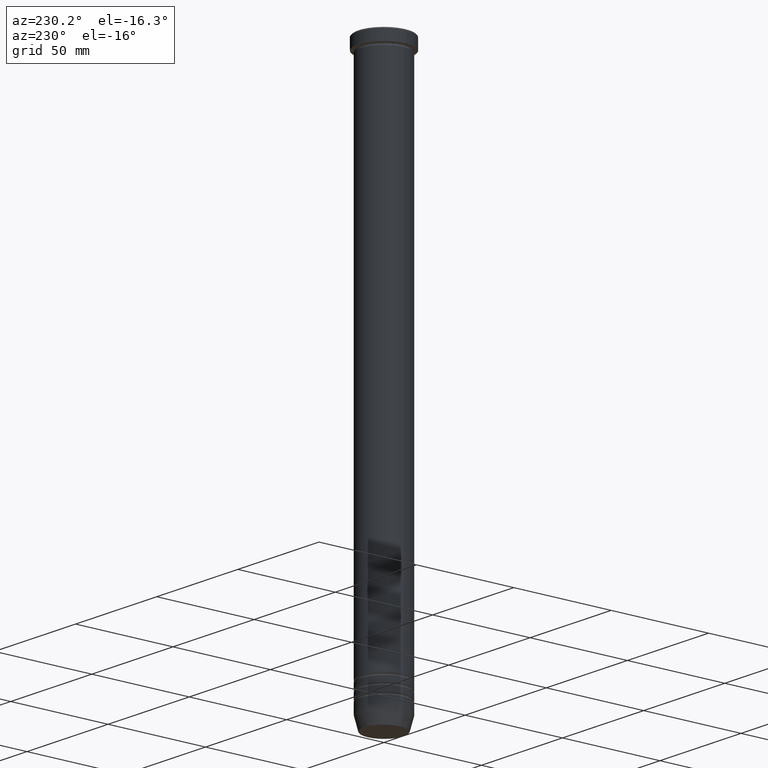
[diagram: clean part render]
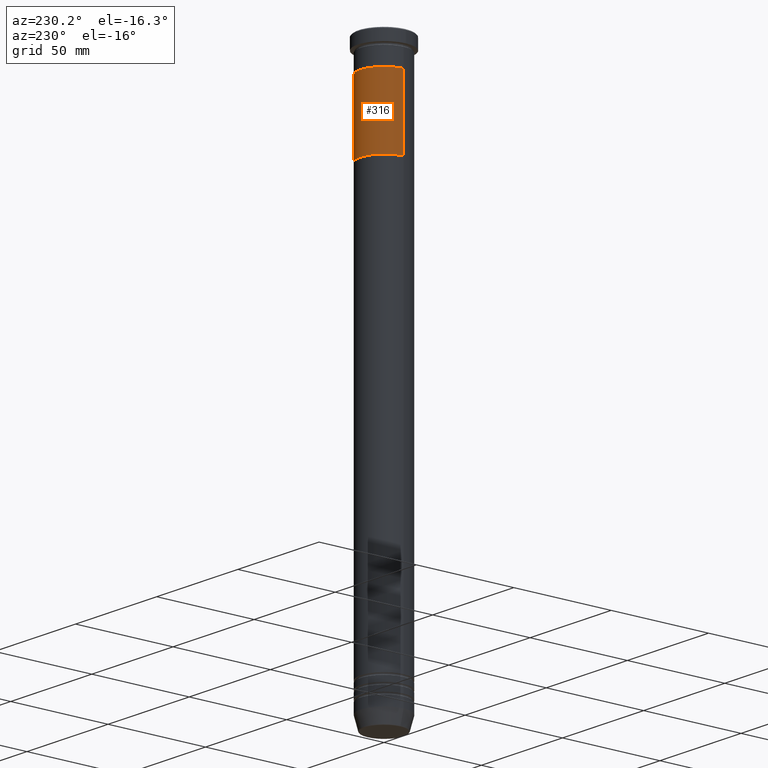
[diagram: same view with one face highlighted and labeled with its STEP entity id]
A machine part, auxiliary view. The second image highlights one B-rep face of the part: STEP entity #316.
In plain terms, the highlighted cylindrical surface (edge-blend (fillet) strip) has radius 12 mm, axis along (-0, -0, 1).
Its self-contained STEP definition (entity closure, byte-faithful):
#36 = CYLINDRICAL_SURFACE ( 'NONE', #808, 12.00000000000000178 ) ;
#126 = DIRECTION ( 'NONE',  ( -0.000000000000000000, -0.000000000000000000, 1.000000000000000000 ) ) ;
#133 = CIRCLE ( 'NONE', #927, 12.00000000000000178 ) ;
#153 = CIRCLE ( 'NONE', #308, 12.00000000000000178 ) ;
#156 = VECTOR ( 'NONE', #126, 1000.000000000000000 ) ;
#208 = DIRECTION ( 'NONE',  ( 0.000000000000000000, 0.000000000000000000, -1.000000000000000000 ) ) ;
#278 = VERTEX_POINT ( 'NONE', #389 ) ;
#298 = DIRECTION ( 'NONE',  ( -1.000000000000000000, 0.000000000000000000, 0.000000000000000000 ) ) ;
#308 = AXIS2_PLACEMENT_3D ( 'NONE', #649, #208, #298 ) ;
#316 = ADVANCED_FACE ( 'NONE', ( #933 ), #36, .T. ) ;
#320 = CARTESIAN_POINT ( 'NONE',  ( -12.00000000000000178, 1.469576158976824144E-15, -16.00000000000000000 ) ) ;
#386 = CARTESIAN_POINT ( 'NONE',  ( 0.000000000000000000, 0.000000000000000000, -16.00000000000000000 ) ) ;
#389 = CARTESIAN_POINT ( 'NONE',  ( -12.00000000000000178, 1.469576158976824144E-15, -52.00000000000000000 ) ) ;
#394 = CARTESIAN_POINT ( 'NONE',  ( 0.000000000000000000, 0.000000000000000000, -52.00000000000000000 ) ) ;
#398 = CARTESIAN_POINT ( 'NONE',  ( -12.00000000000000178, 1.469576158976824144E-15, -52.00000000000000000 ) ) ;
#399 = DIRECTION ( 'NONE',  ( -0.000000000000000000, -0.000000000000000000, 1.000000000000000000 ) ) ;
#508 = LINE ( 'NONE', #1112, #156 ) ;
#551 = EDGE_LOOP ( 'NONE', ( #901, #1088, #949, #979 ) ) ;
#578 = DIRECTION ( 'NONE',  ( 1.000000000000000000, 0.000000000000000000, 0.000000000000000000 ) ) ;
#649 = CARTESIAN_POINT ( 'NONE',  ( 0.000000000000000000, 0.000000000000000000, -52.00000000000000000 ) ) ;
#674 = EDGE_CURVE ( 'NONE', #278, #699, #153, .T. ) ;
#680 = VERTEX_POINT ( 'NONE', #320 ) ;
#699 = VERTEX_POINT ( 'NONE', #1033 ) ;
#739 = DIRECTION ( 'NONE',  ( -0.000000000000000000, -0.000000000000000000, 1.000000000000000000 ) ) ;
#785 = VERTEX_POINT ( 'NONE', #1075 ) ;
#808 = AXIS2_PLACEMENT_3D ( 'NONE', #394, #399, #578 ) ;
#829 = EDGE_CURVE ( 'NONE', #278, #680, #1095, .T. ) ;
#842 = EDGE_CURVE ( 'NONE', #680, #785, #133, .T. ) ;
#863 = VECTOR ( 'NONE', #739, 1000.000000000000000 ) ;
#901 = ORIENTED_EDGE ( 'NONE', *, *, #674, .F. ) ;
#927 = AXIS2_PLACEMENT_3D ( 'NONE', #386, #932, #1007 ) ;
#932 = DIRECTION ( 'NONE',  ( 0.000000000000000000, 0.000000000000000000, -1.000000000000000000 ) ) ;
#933 = FACE_OUTER_BOUND ( 'NONE', #551, .T. ) ;
#949 = ORIENTED_EDGE ( 'NONE', *, *, #842, .T. ) ;
#979 = ORIENTED_EDGE ( 'NONE', *, *, #1023, .F. ) ;
#1007 = DIRECTION ( 'NONE',  ( -1.000000000000000000, 0.000000000000000000, 0.000000000000000000 ) ) ;
#1023 = EDGE_CURVE ( 'NONE', #699, #785, #508, .T. ) ;
#1033 = CARTESIAN_POINT ( 'NONE',  ( 12.00000000000000178, 0.000000000000000000, -52.00000000000000000 ) ) ;
#1075 = CARTESIAN_POINT ( 'NONE',  ( 12.00000000000000178, 0.000000000000000000, -16.00000000000000000 ) ) ;
#1088 = ORIENTED_EDGE ( 'NONE', *, *, #829, .T. ) ;
#1095 = LINE ( 'NONE', #398, #863 ) ;
#1112 = CARTESIAN_POINT ( 'NONE',  ( 12.00000000000000178, 0.000000000000000000, -52.00000000000000000 ) ) ;